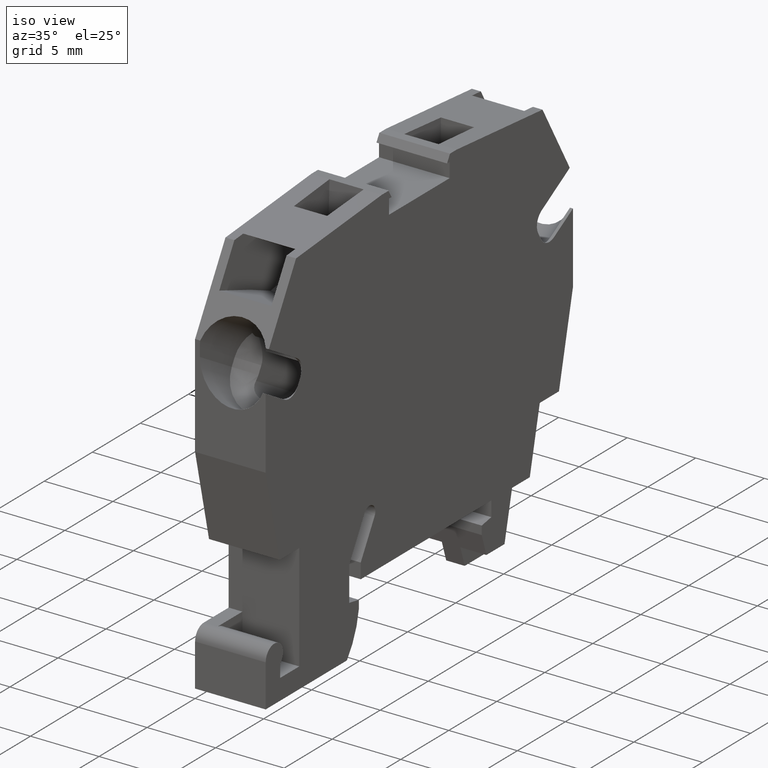
[diagram: clean part render]
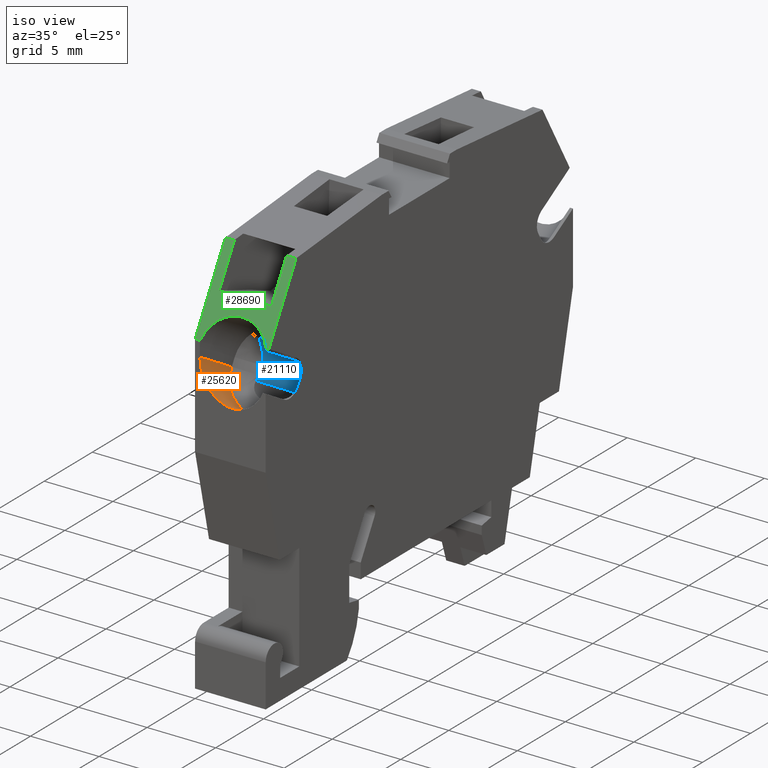
[diagram: same view with three faces highlighted in distinct colors, each labeled with its STEP entity id]
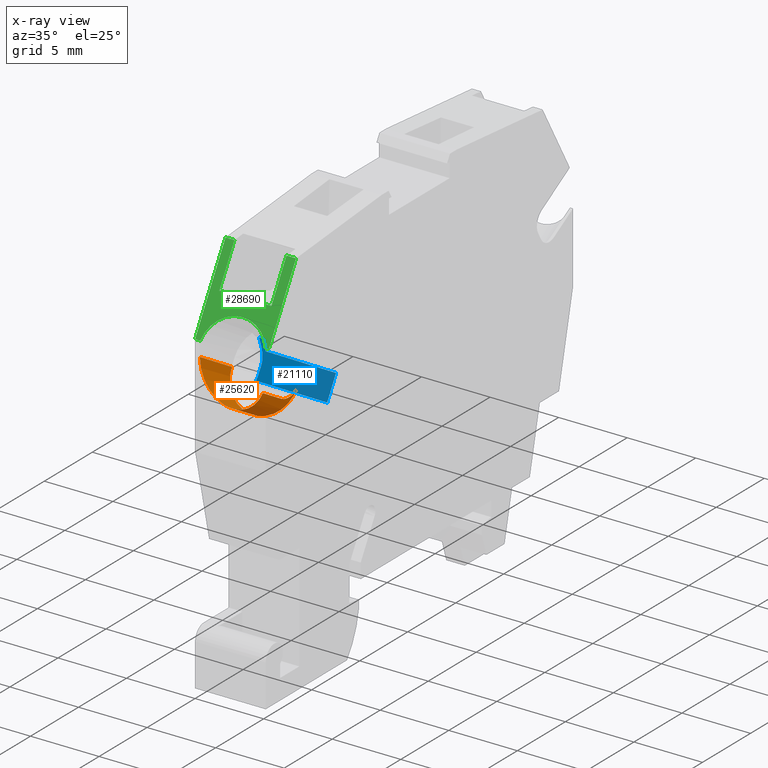
[diagram: x-ray of the same camera — body ghosted, the three highlighted faces saturated]
A machine part, iso view with three faces highlighted in distinct colors.
The next image is the same camera in x-ray (body ghosted, the three faces saturated) — at least one of them is partly hidden behind the body in this view.
Their STEP definitions:

[orange] entity #25620 — the highlighted cylindrical surface (partial cylindrical patch) has radius 2.4 mm, axis along (0, -0.866, 0.5).
#860=CARTESIAN_POINT('',(78.8452959192466,131.52029732996,
4.74999999999983));
#870=VERTEX_POINT('',#860);
#13780=CARTESIAN_POINT('',(78.8452959192445,135.356589515384,
9.54999999999883));
#13790=VERTEX_POINT('',#13780);
#13820=CARTESIAN_POINT('',(78.8452959192467,135.356589515383,
7.14999999999883));
#13830=DIRECTION('',(0.500000000000517,0.86602540378414,
3.82523673593448E-18));
#13840=DIRECTION('',(0.86602540378414,-0.500000000000517,
5.37711908566569E-13));
#13850=AXIS2_PLACEMENT_3D('',#13820,#13830,#13840);
#13860=ELLIPSE('',#13850,2.77128129211124,2.4);
#13870=CARTESIAN_POINT('',(79.8452959192421,134.779239246195,
4.96825757706972));
#13880=VERTEX_POINT('',#13870);
#13890=EDGE_CURVE('',#13790,#13880,#13860,.T.);
#24250=CARTESIAN_POINT('',(78.8452959192469,131.520297329961,
7.14999999999986));
#24260=DIRECTION('',(-4.82947015711943E-14,1.,-2.68852641531397E-13));
#24270=DIRECTION('',(-1.,-4.85722573273506E-14,1.44070206015495E-13));
#24280=AXIS2_PLACEMENT_3D('',#24250,#24260,#24270);
#24290=CIRCLE('',#24280,2.4);
#24300=CARTESIAN_POINT('',(78.8452959192465,131.520297329961,
9.54999999999986));
#24310=VERTEX_POINT('',#24300);
#24320=EDGE_CURVE('',#24310,#870,#24290,.T.);
#24550=CARTESIAN_POINT('',(78.8452959192468,134.600297329961,
7.14999999999903));
#24560=DIRECTION('',(-4.82947015711943E-14,1.,-2.68852641531397E-13));
#24570=DIRECTION('',(-1.,-4.85167461761193E-14,1.44070206015495E-13));
#24580=AXIS2_PLACEMENT_3D('',#24550,#24560,#24570);
#24590=CYLINDRICAL_SURFACE('',#24580,2.4);
#24600=ORIENTED_EDGE('',*,*,#13890,.T.);
#24610=CARTESIAN_POINT('',(78.84529591925,134.600297329959,
9.54999999999903));
#24620=DIRECTION('',(4.82947015711943E-14,-1.,2.68852641531397E-13));
#24630=VECTOR('',#24620,1.);
#24640=LINE('',#24610,#24630);
#24650=EDGE_CURVE('',#13790,#24310,#24640,.T.);
#24660=ORIENTED_EDGE('',*,*,#24650,.F.);
#24670=ORIENTED_EDGE('',*,*,#24320,.F.);
#24680=CARTESIAN_POINT('',(78.8452959192458,132.52029732996,
4.7499999999996));
#24690=DIRECTION('',(-1.44070206015482E-13,-2.68852641531403E-13,-1.));
#24700=DIRECTION('',(-0.499999999999457,-0.866025403784753,
3.04868320448494E-13));
#24710=AXIS2_PLACEMENT_3D('',#24680,#24690,#24700);
#24720=CYLINDRICAL_SURFACE('',#24710,1.);
#24730=CARTESIAN_POINT('',(78.8452959192469,131.520297329961,
7.14999999999986));
#24740=DIRECTION('',(4.84612350248881E-14,-1.,2.68852641531396E-13));
#24750=DIRECTION('',(-1.,-4.86277684785819E-14,1.44070206015495E-13));
#24760=AXIS2_PLACEMENT_3D('',#24730,#24740,#24750);
#24770=CYLINDRICAL_SURFACE('',#24760,2.4);
#24780=CARTESIAN_POINT('',(79.8452959192459,132.52029732996,
4.96825757707199));
#24790=CARTESIAN_POINT('',(79.8452959192459,132.503783723917,
4.968257577072));
#24800=CARTESIAN_POINT('',(79.8448891180082,132.487343474391,
4.96807098128669));
#24810=CARTESIAN_POINT('',(79.8440729239077,132.470855495865,
4.96769743276454));
#24820=CARTESIAN_POINT('',(79.8432570301513,132.454373584604,
4.96732402170123));
#24830=CARTESIAN_POINT('',(79.8420313594368,132.437881269464,
4.96676348116938));
#24840=CARTESIAN_POINT('',(79.8403946663274,132.421411114759,
4.96601774650974));
#24850=CARTESIAN_POINT('',(79.8387579808513,132.404941036869,
4.96527201532806));
#24860=CARTESIAN_POINT('',(79.8367102832858,132.38849350864,
4.96434110044273));
#24870=CARTESIAN_POINT('',(79.834254146795,132.372102781603,
4.96323032210377));
#24880=CARTESIAN_POINT('',(79.8317980161732,132.355712093731,
4.962119546419));
#24890=CARTESIAN_POINT('',(79.8289334923616,132.339378595096,
4.96082893984852));
#24900=CARTESIAN_POINT('',(79.8256671440411,132.323136832919,
4.95936715499906));
#24910=CARTESIAN_POINT('',(79.8224007968795,132.306895076505,
4.95790537066822));
#24920=CARTESIAN_POINT('',(79.8187327010532,132.290745425284,
4.95627245926186));
#24930=CARTESIAN_POINT('',(79.8146733011623,132.27472149355,
4.95448013185209));
#24940=CARTESIAN_POINT('',(79.810613895113,132.258697537505,
4.95268780172322));
#24950=CARTESIAN_POINT('',(79.806163284352,132.24279963711,
4.95073612061195));
#24960=CARTESIAN_POINT('',(79.8013354191782,132.227059415343,
4.94863940378398));
#24970=CARTESIAN_POINT('',(79.7965075380119,132.211319141436,
4.94654268001055));
#24980=CARTESIAN_POINT('',(79.7913025184594,132.195736841118,
4.94430099400105));
#24990=CARTESIAN_POINT('',(79.785737232101,132.180341248863,
4.94193067656866));
#25000=CARTESIAN_POINT('',(79.7801716089301,132.164944724862,
4.93956021568406));
#25010=CARTESIAN_POINT('',(79.7742473062006,132.149738794812,
4.93706181153044));
#25020=CARTESIAN_POINT('',(79.7679790676435,132.134738245431,
4.9344513529001));
#25030=CARTESIAN_POINT('',(79.7554342732725,132.104717242605,
4.92922697185058));
#25040=CARTESIAN_POINT('',(79.7413992999056,132.075255528115,
4.92350621675066));
#25050=CARTESIAN_POINT('',(79.725949510481,132.046536575734,
4.91741198331445));
#25060=CARTESIAN_POINT('',(79.710499954049,132.017818056453,
4.91131784178313));
#25070=CARTESIAN_POINT('',(79.6936379011861,131.989847216989,
4.90485176016513));
#25080=CARTESIAN_POINT('',(79.6754747789337,131.962800190121,
4.89815563128104));
#25090=CARTESIAN_POINT('',(79.657311664896,131.935753175486,
4.89145950542546));
#25100=CARTESIAN_POINT('',(79.6378503210951,131.909634162963,
4.88453499320454));
#25110=CARTESIAN_POINT('',(79.6172318287234,131.884596966849,
4.87753108895589));
#25120=CARTESIAN_POINT('',(79.5966130475353,131.859559420023,
4.87052708659909));
#25130=CARTESIAN_POINT('',(79.5748403922512,131.835607221363,
4.86344529800029));
#25140=CARTESIAN_POINT('',(79.5520736786058,131.812861679972,
4.85642959583172));
#25150=CARTESIAN_POINT('',(79.5293034700908,131.790112646961,
4.84941281669772));
#25160=CARTESIAN_POINT('',(79.5053165341124,131.768348640709,
4.84239317853632));
#25170=CARTESIAN_POINT('',(79.4802344902774,131.747734704005,
4.83551236533489));
#25180=CARTESIAN_POINT('',(79.4551527770875,131.727121039045,
4.82863164284006));
#25190=CARTESIAN_POINT('',(79.4289796332799,131.707660927192,
4.82189134728667));
#25200=CARTESIAN_POINT('',(79.4018722177449,131.689500830219,
4.81542877085628));
#25210=CARTESIAN_POINT('',(79.3747647721068,131.671340713079,
4.8089661872491));
#25220=CARTESIAN_POINT('',(79.3467277423622,131.654483826216,
4.80278289993911));
#25230=CARTESIAN_POINT('',(79.3179430800727,131.639045571734,
4.79700092193775));
#25240=CARTESIAN_POINT('',(79.2891579374239,131.623607059617,
4.79121884744657));
#25250=CARTESIAN_POINT('',(79.2596306863956,131.609589778195,
4.78583940690121));
#25260=CARTESIAN_POINT('',(79.2295507050833,131.597070240041,
4.78096047741651));
#25270=CARTESIAN_POINT('',(79.2145138371867,131.590811770682,
4.77852151918126));
#25280=CARTESIAN_POINT('',(79.1992850225551,131.584904690061,
4.77619850967548));
#25290=CARTESIAN_POINT('',(79.1838906094837,131.579365007344,
4.77400470628745));
#25300=CARTESIAN_POINT('',(79.1684962923804,131.573825359162,
4.77181091657551));
#25310=CARTESIAN_POINT('',(79.1529369199585,131.568653330917,
4.76974643182242));
#25320=CARTESIAN_POINT('',(79.1372418790132,131.563862514316,
4.76782293761005));
#25330=CARTESIAN_POINT('',(79.1215468425582,131.559071699086,
4.76589944394799));
#25340=CARTESIAN_POINT('',(79.1057164222116,131.554662187053,
4.76411698754787));
#25350=CARTESIAN_POINT('',(79.0897814044683,131.55064437786,
4.76248521522552));
#25360=CARTESIAN_POINT('',(79.0738463641326,131.546626562971,
4.76085344058968));
#25370=CARTESIAN_POINT('',(79.0578070286549,131.543000520502,
4.7593723860745));
#25380=CARTESIAN_POINT('',(79.041694615462,131.539773208827,
4.75804942523352));
#25390=CARTESIAN_POINT('',(79.009497647316,131.533324165473,
4.7554057909408));
#25400=CARTESIAN_POINT('',(78.9768967390271,131.528445655595,
4.7533855225178));
#25410=CARTESIAN_POINT('',(78.9440653399638,131.525186983551,
4.75203323594094));
#25420=CARTESIAN_POINT('',(78.9276539132314,131.523558071624,
4.75135726864406));
#25430=CARTESIAN_POINT('',(78.9111942703779,131.52233469093,
4.75084830001907));
#25440=CARTESIAN_POINT('',(78.8947213511331,131.521519513485,
4.75050898591316));
#25450=CARTESIAN_POINT('',(78.8782474716679,131.520704288523,
4.75016965202834));
#25460=CARTESIAN_POINT('',(78.8617647198036,131.52029732996,
4.74999999999987));
#25470=CARTESIAN_POINT('',(78.8452959192466,131.52029732996,
4.74999999999987));
#25480=B_SPLINE_CURVE_WITH_KNOTS('',3,(#24780,#24790,#24800,#24810,
#24820,#24830,#24840,#24850,#24860,#24870,#24880,#24890,#24900,#24910,
#24920,#24930,#24940,#24950,#24960,#24970,#24980,#24990,#25000,#25010,
#25020,#25030,#25040,#25050,#25060,#25070,#25080,#25090,#25100,#25110,
#25120,#25130,#25140,#25150,#25160,#25170,#25180,#25190,#25200,#25210,
#25220,#25230,#25240,#25250,#25260,#25270,#25280,#25290,#25300,#25310,
#25320,#25330,#25340,#25350,#25360,#25370,#25380,#25390,#25400,#25410,
#25420,#25430,#25440,#25450,#25460,#25470),.UNSPECIFIED.,.F.,.F.,(4,3,3,
3,3,3,3,3,3,3,3,3,3,3,3,3,3,3,3,3,3,3,3,4),(0.,0.0494662261203966,
0.0990817925598835,0.148855224811765,0.198724314437629,0.248618022547,
0.29846036609485,0.348174031160832,0.397686184560099,0.496905628076421,
0.596596057701831,0.696300543126176,0.795518350675622,0.894752055819199,
0.994466197296149,1.0941528869131,1.19335301586382,1.24282250010806,
1.29237236203002,1.34193305594301,1.3914382190908,1.49038070031031,
1.5398901693319,1.58933923803272),.UNSPECIFIED.);
#25490=SURFACE_CURVE('',#25480,(#24720,#24770),.CURVE_3D.);
#25500=CARTESIAN_POINT('',(79.8452959192466,132.52029732996,
4.96825757707231));
#25510=VERTEX_POINT('',#25500);
#25520=EDGE_CURVE('',#25510,#870,#25490,.T.);
#25530=ORIENTED_EDGE('',*,*,#25520,.T.);
#25540=CARTESIAN_POINT('',(79.8452959192464,134.60029732996,
4.96825757707175));
#25550=DIRECTION('',(-4.82947015711943E-14,1.,-2.68852641531396E-13));
#25560=VECTOR('',#25550,1.);
#25570=LINE('',#25540,#25560);
#25580=EDGE_CURVE('',#25510,#13880,#25570,.T.);
#25590=ORIENTED_EDGE('',*,*,#25580,.F.);
#25600=EDGE_LOOP('',(#25590,#25530,#24670,#24660,#24600));
#25610=FACE_OUTER_BOUND('',#25600,.T.);
#25620=ADVANCED_FACE('',(#25610),#24590,.F.);

[blue] entity #21110 — the highlighted planar face has unit normal (1, 0, -0).
#15320=CARTESIAN_POINT('',(78.2452959192469,131.520297329961,
7.14999999999995));
#15330=DIRECTION('',(-4.10232039761829E-14,1.,-2.68787451052282E-13));
#15340=DIRECTION('',(-1.,-4.85167461761193E-14,1.44070206015495E-13));
#15350=AXIS2_PLACEMENT_3D('',#15320,#15330,#15340);
#15360=CONICAL_SURFACE('',#15350,2.4,0.523598775598301);
#16150=CARTESIAN_POINT('',(78.8452959192469,131.520297329961,
7.14999999999986));
#16160=DIRECTION('',(-5.46976053015772E-14,1.,-2.68787451052282E-13));
#16170=DIRECTION('',(-1.,-4.85167461761193E-14,1.44070206015495E-13));
#16180=AXIS2_PLACEMENT_3D('',#16150,#16160,#16170);
#16190=CONICAL_SURFACE('',#16180,2.4,0.523598775598301);
#17830=CARTESIAN_POINT('',(76.6896159324951,130.250318974947,
8.60000000000043));
#17840=VERTEX_POINT('',#17830);
#17870=CARTESIAN_POINT('',(76.6896159324958,114.965974517326,
8.60000000000454));
#17880=DIRECTION('',(4.85167461761193E-14,-1.,2.68852641531397E-13));
#17890=VECTOR('',#17880,1.);
#17900=LINE('',#17870,#17890);
#17910=CARTESIAN_POINT('',(76.6896159324618,131.046841241217,
8.60000000000022));
#17920=VERTEX_POINT('',#17910);
#17930=EDGE_CURVE('',#17920,#17840,#17900,.T.);
#18590=CARTESIAN_POINT('',(79.2202959192478,121.400297329966,
8.60000000000245));
#18600=VERTEX_POINT('',#18590);
#18630=CARTESIAN_POINT('',(-9.32818109333238,121.400297329924,
8.60000000001521));
#18640=DIRECTION('',(-1.,-4.71012118197223E-13,1.44070206015609E-13));
#18650=VECTOR('',#18640,1.);
#18660=LINE('',#18630,#18650);
#18670=CARTESIAN_POINT('',(77.3702959192515,121.400297329965,
8.60000000000272));
#18680=VERTEX_POINT('',#18670);
#18690=EDGE_CURVE('',#18600,#18680,#18660,.T.);
#18980=CARTESIAN_POINT('',(77.3702959192509,129.857328201361,
8.60000000000044));
#18990=VERTEX_POINT('',#18980);
#19020=CARTESIAN_POINT('',(16.0084399474484,165.28461226468,
8.59999999999976));
#19030=DIRECTION('',(-0.866025403784295,0.500000000000249,
-9.65786242792453E-15));
#19040=VECTOR('',#19030,1.);
#19050=LINE('',#19020,#19040);
#19060=EDGE_CURVE('',#18990,#17840,#19050,.T.);
#19250=CARTESIAN_POINT('',(77.3702959192611,-22.267115902579,
8.60000000004134));
#19260=DIRECTION('',(-6.66688926287407E-14,1.,-2.68852641531394E-13));
#19270=VECTOR('',#19260,1.);
#19280=LINE('',#19250,#19270);
#19290=EDGE_CURVE('',#18680,#18990,#19280,.T.);
#19460=CARTESIAN_POINT('',(78.2452959192472,129.874849062771,
8.60000000000031));
#19470=VERTEX_POINT('',#19460);
#19790=CARTESIAN_POINT('',(79.7579327541299,130.151648924009,
8.60000000000002));
#19800=DIRECTION('',(-1.44070206015482E-13,-2.68852641531403E-13,-1.));
#19810=DIRECTION('',(-0.866025403784463,0.499999999999958,
-9.65786242782196E-15));
#19820=AXIS2_PLACEMENT_3D('',#19790,#19800,#19810);
#19830=PLANE('',#19820);
#19840=CARTESIAN_POINT('',(78.2452959192472,129.874849062771,
8.60000000000031));
#19850=CARTESIAN_POINT('',(78.2243358334393,129.874849062771,
8.60000000000032));
#19860=CARTESIAN_POINT('',(78.2033284284366,129.875638521934,
8.60000000000029));
#19870=CARTESIAN_POINT('',(78.1823501924591,129.877214386951,
8.60000000000029));
#19880=CARTESIAN_POINT('',(78.1613721467414,129.878790237676,
8.60000000000029));
#19890=CARTESIAN_POINT('',(78.1404263400016,129.881152270563,8.6));
#19900=CARTESIAN_POINT('',(78.1195921666102,129.884268943748,
8.60000000000001));
#19910=CARTESIAN_POINT('',(78.0987579718907,129.887385620123,
8.60000000000001));
#19920=CARTESIAN_POINT('',(78.0780380408504,129.891256271999,
8.59999999999975));
#19930=CARTESIAN_POINT('',(78.0575058534869,129.895823876243,
8.59999999999975));
#19940=CARTESIAN_POINT('',(78.0369734675695,129.900391524658,
8.59999999999975));
#19950=CARTESIAN_POINT('',(78.0166307408268,129.905655253531,
8.60000000000028));
#19960=CARTESIAN_POINT('',(77.9965391231579,129.91153940355,
8.60000000000028));
#19970=CARTESIAN_POINT('',(77.976438070019,129.917426316897,
8.60000000000028));
#19980=CARTESIAN_POINT('',(77.9566398530119,129.923914330486,
8.59999999999966));
#19990=CARTESIAN_POINT('',(77.9369982687315,129.930989522448,
8.59999999999966));
#20000=CARTESIAN_POINT('',(77.917361260264,129.938063066133,
8.59999999999966));
#20010=CARTESIAN_POINT('',(77.8979152714598,129.945714515599,
8.60000000000034));
#20020=CARTESIAN_POINT('',(77.8786679731109,129.953886567735,
8.60000000000034));
#20030=CARTESIAN_POINT('',(77.8401733591095,129.970230679352,
8.60000000000034));
#20040=CARTESIAN_POINT('',(77.8024738242004,129.988656912885,
8.60000000000034));
#20050=CARTESIAN_POINT('',(77.7656277379886,130.008700455438,
8.60000000000034));
#20060=CARTESIAN_POINT('',(77.7287818373656,130.028743897034,
8.60000000000034));
#20070=CARTESIAN_POINT('',(77.692788143403,130.050404177076,
8.59999999999208));
#20080=CARTESIAN_POINT('',(77.6577095363021,130.073222854673,
8.59999999999208));
#20090=CARTESIAN_POINT('',(77.6401664314644,130.084634666214,
8.59999999999208));
#20100=CARTESIAN_POINT('',(77.6228679255014,130.096325504121,
8.59999999999969));
#20110=CARTESIAN_POINT('',(77.605778075484,130.108270511369,
8.59999999999969));
#20120=CARTESIAN_POINT('',(77.5886822678377,130.120219682722,
8.59999999999969));
#20130=CARTESIAN_POINT('',(77.5717758647723,130.132437162807,
8.60000000000034));
#20140=CARTESIAN_POINT('',(77.5550440638795,130.144893479372,
8.60000000000034));
#20150=CARTESIAN_POINT('',(77.5383122168534,130.157349830282,
8.60000000000034));
#20160=CARTESIAN_POINT('',(77.5217548480718,130.17004515112,
8.60000000000034));
#20170=CARTESIAN_POINT('',(77.5053582626634,130.182953943085,
8.60000000000034));
#20180=CARTESIAN_POINT('',(77.4889616488213,130.195862757436,
8.60000000000033));
#20190=CARTESIAN_POINT('',(77.4727257282941,130.20898515487,
8.60000000000034));
#20200=CARTESIAN_POINT('',(77.4566381555458,130.222298826367,
8.60000000000033));
#20210=CARTESIAN_POINT('',(77.4244631676718,130.248926038915,
8.60000000000033));
#20220=CARTESIAN_POINT('',(77.3928792628184,130.276317220366,
8.60000000000033));
#20230=CARTESIAN_POINT('',(77.3618062804518,130.304321128387,
8.60000000000032));
#20240=CARTESIAN_POINT('',(77.3307332293609,130.332325098345,
8.60000000000032));
#20250=CARTESIAN_POINT('',(77.3001701120458,130.360943665733,
8.60000000000032));
#20260=CARTESIAN_POINT('',(77.270059178825,130.390050151265,
8.60000000000031));
#20270=CARTESIAN_POINT('',(77.2399483085634,130.419156575938,
8.60000000000031));
#20280=CARTESIAN_POINT('',(77.2102892287445,130.44875202697,
8.6000000000003));
#20290=CARTESIAN_POINT('',(77.1810437251081,130.478724200226,
8.6000000000003));
#20300=CARTESIAN_POINT('',(77.1517983100023,130.508696282752,
8.6000000000003));
#20310=CARTESIAN_POINT('',(77.1229663851736,130.539045691513,
8.60000000000029));
#20320=CARTESIAN_POINT('',(77.0945252898561,130.56966906587,
8.60000000000029));
#20330=CARTESIAN_POINT('',(77.0660783865188,130.600298693894,
8.60000000000029));
#20340=CARTESIAN_POINT('',(77.0380569165945,130.631163554328,
8.59999999998741));
#20350=CARTESIAN_POINT('',(77.0103106756723,130.662324566176,
8.59999999998741));
#20360=CARTESIAN_POINT('',(76.9825685857215,130.693480916187,
8.5999999999874));
#20370=CARTESIAN_POINT('',(76.9551276102832,130.724906117103,
8.60000000000027));
#20380=CARTESIAN_POINT('',(76.9279492062412,130.756560781191,
8.60000000000026));
#20390=CARTESIAN_POINT('',(76.9007707650533,130.788215488542,
8.60000000000026));
#20400=CARTESIAN_POINT('',(76.8738548443939,130.820099969131,
8.60000000000025));
#20410=CARTESIAN_POINT('',(76.8471694515183,130.852182187721,
8.60000000000025));
#20420=CARTESIAN_POINT('',(76.8204840424965,130.884264425722,
8.60000000000024));
#20430=CARTESIAN_POINT('',(76.7940291404898,130.916544619081,
8.60000000000024));
#20440=CARTESIAN_POINT('',(76.7677782731172,130.948996005285,
8.60000000000024));
#20450=CARTESIAN_POINT('',(76.7415274025341,130.981447395457,
8.60000000000023));
#20460=CARTESIAN_POINT('',(76.7154805633329,131.014070130863,
8.60000000000022));
#20470=CARTESIAN_POINT('',(76.6896159324744,131.046841241201,
8.60000000000022));
#20480=B_SPLINE_CURVE_WITH_KNOTS('',3,(#19840,#19850,#19860,#19870,
#19880,#19890,#19900,#19910,#19920,#19930,#19940,#19950,#19960,#19970,
#19980,#19990,#20000,#20010,#20020,#20030,#20040,#20050,#20060,#20070,
#20080,#20090,#20100,#20110,#20120,#20130,#20140,#20150,#20160,#20170,
#20180,#20190,#20200,#20210,#20220,#20230,#20240,#20250,#20260,#20270,
#20280,#20290,#20300,#20310,#20320,#20330,#20340,#20350,#20360,#20370,
#20380,#20390,#20400,#20410,#20420,#20430,#20440,#20450,#20460,#20470),
.UNSPECIFIED.,.F.,.F.,(4,3,3,3,3,3,3,3,3,3,3,3,3,3,3,3,3,3,3,3,3,4),(0.,
0.0630049094060745,0.12617241128217,0.189337864524399,0.252308963806416,
0.314955840676469,0.377627333495997,0.503305333187885,0.629073385291132,
0.691727814558913,0.754301562919803,0.816891622087094,0.879516402298483,
1.00490807591389,1.13048116406656,1.25613132162383,1.38165903462097,
1.50686972768114,1.63202683054386,1.75720327204146,1.88240757800527,
2.00764028213981),.UNSPECIFIED.);
#20490=SURFACE_CURVE('',#20480,(#15360,#19830),.CURVE_3D.);
#20500=EDGE_CURVE('',#19470,#17920,#20490,.T.);
#20620=CARTESIAN_POINT('',(79.2202959192479,118.183752470913,
8.60000000000331));
#20630=DIRECTION('',(-4.83502127224256E-14,1.,-2.68852641531396E-13));
#20640=VECTOR('',#20630,1.);
#20650=LINE('',#20620,#20640);
#20660=CARTESIAN_POINT('',(79.2202959192473,129.957479283316,
8.60000000000015));
#20670=VERTEX_POINT('',#20660);
#20680=EDGE_CURVE('',#18600,#20670,#20650,.T.);
#20690=ORIENTED_EDGE('',*,*,#20680,.F.);
#20700=CARTESIAN_POINT('',(79.2202959192474,129.957479283316,
8.60000000000015));
#20710=CARTESIAN_POINT('',(79.1906755681788,129.944633654788,
8.60000000000016));
#20720=CARTESIAN_POINT('',(79.1605257391667,129.932987997581,
8.60000000000016));
#20730=CARTESIAN_POINT('',(79.1299498704725,129.92278618646,
8.60000000000017));
#20740=CARTESIAN_POINT('',(79.1146621978423,129.917685368223,
8.60000000000017));
#20750=CARTESIAN_POINT('',(79.0992687969026,129.912945213924,
8.59999999999492));
#20760=CARTESIAN_POINT('',(79.083784002444,129.908592415422,
8.59999999999493));
#20770=CARTESIAN_POINT('',(79.0682991689219,129.90423960594,
8.59999999999493));
#20780=CARTESIAN_POINT('',(79.0527231867953,129.900274250119,
8.60000000000003));
#20790=CARTESIAN_POINT('',(79.0370703602729,129.896719487786,
8.60000000000003));
#20800=CARTESIAN_POINT('',(79.0214118363255,129.893163431565,
8.60000000000003));
#20810=CARTESIAN_POINT('',(79.0057017855488,129.890022686608,
8.60000000000019));
#20820=CARTESIAN_POINT('',(78.9898802115718,129.887303650039,
8.6000000000002));
#20830=CARTESIAN_POINT('',(78.9740555068569,129.884584075434,
8.6000000000002));
#20840=CARTESIAN_POINT('',(78.9581174396378,129.882287763158,
8.6000000000002));
#20850=CARTESIAN_POINT('',(78.9420969510803,129.880439419446,
8.60000000000021));
#20860=CARTESIAN_POINT('',(78.926076622211,129.878591094158,
8.60000000000021));
#20870=CARTESIAN_POINT('',(78.9099746200064,129.877190961641,
8.60000000000022));
#20880=CARTESIAN_POINT('',(78.8938278035948,129.876255419054,
8.60000000000022));
#20890=CARTESIAN_POINT('',(78.877681072899,129.875319881434,
8.60000000000022));
#20900=CARTESIAN_POINT('',(78.8614904059925,129.874849062772,
8.60000000000022));
#20910=CARTESIAN_POINT('',(78.8452959193286,129.874849062771,
8.60000000000022));
#20920=B_SPLINE_CURVE_WITH_KNOTS('',3,(#20700,#20710,#20720,#20730,
#20740,#20750,#20760,#20770,#20780,#20790,#20800,#20810,#20820,#20830,
#20840,#20850,#20860,#20870,#20880,#20890,#20900,#20910),.UNSPECIFIED.,
.F.,.F.,(4,3,3,3,3,3,3,4),(0.,0.0968088348403163,0.14511202985291,
0.193316062960432,0.241442071349904,0.289722007187167,0.338178708682954,
0.386737742139639),.UNSPECIFIED.);
#20930=SURFACE_CURVE('',#20920,(#16190,#19830),.CURVE_3D.);
#20940=CARTESIAN_POINT('',(78.845295919478,129.874849062771,
8.60000000000022));
#20950=VERTEX_POINT('',#20940);
#20960=EDGE_CURVE('',#20670,#20950,#20930,.T.);
#20970=ORIENTED_EDGE('',*,*,#20960,.F.);
#20980=CARTESIAN_POINT('',(69.8396644259696,129.87484906277,
8.60000000000152));
#20990=DIRECTION('',(-1.,-4.85167461761193E-14,1.44070206015495E-13));
#21000=VECTOR('',#20990,1.);
#21010=LINE('',#20980,#21000);
#21020=EDGE_CURVE('',#20950,#19470,#21010,.T.);
#21030=ORIENTED_EDGE('',*,*,#21020,.F.);
#21040=ORIENTED_EDGE('',*,*,#20500,.F.);
#21050=ORIENTED_EDGE('',*,*,#17930,.F.);
#21060=ORIENTED_EDGE('',*,*,#19060,.T.);
#21070=ORIENTED_EDGE('',*,*,#19290,.T.);
#21080=ORIENTED_EDGE('',*,*,#18690,.T.);
#21090=EDGE_LOOP('',(#21080,#21070,#21060,#21050,#21040,#21030,#20970,
#20690));
#21100=FACE_OUTER_BOUND('',#21090,.T.);
#21110=ADVANCED_FACE('',(#21100),#19830,.T.);

[green] entity #28690 — the highlighted planar face has unit normal (-0, 0.866, -0.5).
#1110=CARTESIAN_POINT('',(77.2452959192463,135.90029732996,
4.74999999999991));
#1120=VERTEX_POINT('',#1110);
#1150=CARTESIAN_POINT('',(79.6226566744922,135.900297329959,
4.74999999999987));
#1160=DIRECTION('',(-1.,-1.68365321684405E-13,1.9300830002557E-14));
#1170=VECTOR('',#1160,1.);
#1180=LINE('',#1150,#1170);
#1190=CARTESIAN_POINT('',(71.5706800120703,135.900297329958,
4.75000000000002));
#1200=VERTEX_POINT('',#1190);
#1210=EDGE_CURVE('',#1120,#1200,#1180,.T.);
#10500=CARTESIAN_POINT('',(71.5706800120703,135.900297329958,9.9));
#10510=VERTEX_POINT('',#10500);
#10540=CARTESIAN_POINT('',(79.6226566744922,135.900297329959,9.9));
#10550=DIRECTION('',(-1.,-1.68365321684405E-13,-2.05268329735081E-48));
#10560=VECTOR('',#10550,1.);
#10570=LINE('',#10540,#10560);
#10580=CARTESIAN_POINT('',(77.9035663599303,135.900297329959,9.9));
#10590=VERTEX_POINT('',#10580);
#10600=EDGE_CURVE('',#10590,#10510,#10570,.T.);
#13680=CARTESIAN_POINT('',(77.9035663599257,135.900297329961,
9.52554644414592));
#13690=VERTEX_POINT('',#13680);
#14000=CARTESIAN_POINT('',(77.9035663599303,135.900297329959,
-0.100000000000001));
#14010=DIRECTION('',(-1.31555400968625E-17,3.1783516978558E-18,1.));
#14020=VECTOR('',#14010,1.);
#14030=LINE('',#14000,#14020);
#14040=EDGE_CURVE('',#13690,#10590,#14030,.T.);
#14460=CARTESIAN_POINT('',(71.5706800120703,135.900297329958,
-0.100000000000001));
#14470=DIRECTION('',(2.50910263134173E-18,3.17835169785844E-18,1.));
#14480=VECTOR('',#14470,1.);
#14490=LINE('',#14460,#14480);
#14500=CARTESIAN_POINT('',(71.5706800120703,135.900297329958,
5.45000000000001));
#14510=VERTEX_POINT('',#14500);
#14520=EDGE_CURVE('',#1200,#14510,#14490,.T.);
#14740=CARTESIAN_POINT('',(71.5706800120703,135.900297329958,
9.25000000000001));
#14750=VERTEX_POINT('',#14740);
#14780=CARTESIAN_POINT('',(71.5706800120703,135.900297329958,
-0.100000000000001));
#14790=DIRECTION('',(-2.50910263134173E-18,-3.17835169785844E-18,-1.));
#14800=VECTOR('',#14790,1.);
#14810=LINE('',#14780,#14800);
#14820=EDGE_CURVE('',#10510,#14750,#14810,.T.);
#26600=CARTESIAN_POINT('',(78.2452959192467,135.900297329959,
7.14999999999877));
#26610=DIRECTION('',(-4.82947015711943E-14,1.,-2.68852641531396E-13));
#26620=DIRECTION('',(-1.,-4.82947015711556E-14,1.44070206015495E-13));
#26630=AXIS2_PLACEMENT_3D('',#26600,#26610,#26620);
#26640=CIRCLE('',#26630,2.4);
#26650=CARTESIAN_POINT('',(77.2452959192464,135.900297329958,
4.96825757707178));
#26660=VERTEX_POINT('',#26650);
#26670=EDGE_CURVE('',#26660,#13690,#26640,.T.);
#28140=CARTESIAN_POINT('',(77.2452959192456,135.900297329959,
-0.100000000000001));
#28150=DIRECTION('',(-1.44070206015495E-13,-3.17835172212486E-18,-1.));
#28160=VECTOR('',#28150,1.);
#28170=LINE('',#28140,#28160);
#28180=EDGE_CURVE('',#26660,#1120,#28170,.T.);
#28330=CARTESIAN_POINT('',(74.944065659006,135.900297329958,
2.30298489355548));
#28340=DIRECTION('',(1.68365321684405E-13,-1.,3.17835169785802E-18));
#28350=DIRECTION('',(-1.,-1.68365321684405E-13,9.56309183983368E-19));
#28360=AXIS2_PLACEMENT_3D('',#28330,#28340,#28350);
#28370=PLANE('',#28360);
#28380=CARTESIAN_POINT('',(79.6226566744921,135.900297329959,
9.25000000000001));
#28390=DIRECTION('',(-1.,-1.68365321684405E-13,-2.05268329735081E-48));
#28400=VECTOR('',#28390,1.);
#28410=LINE('',#28380,#28400);
#28420=CARTESIAN_POINT('',(74.7162562402307,135.900297329958,
9.25000000000001));
#28430=VERTEX_POINT('',#28420);
#28440=EDGE_CURVE('',#28430,#14750,#28410,.T.);
#28450=ORIENTED_EDGE('',*,*,#28440,.T.);
#28460=CARTESIAN_POINT('',(74.7162562402333,135.900297329959,
-0.100000000000001));
#28470=DIRECTION('',(-1.67982975616831E-18,2.68914593386317E-13,1.));
#28480=VECTOR('',#28470,1.);
#28490=LINE('',#28460,#28480);
#28500=CARTESIAN_POINT('',(74.7162562402304,135.900297329958,
5.45000000000001));
#28510=VERTEX_POINT('',#28500);
#28520=EDGE_CURVE('',#28510,#28430,#28490,.T.);
#28530=ORIENTED_EDGE('',*,*,#28520,.T.);
#28540=CARTESIAN_POINT('',(79.6226566744921,135.900297329959,
5.45000000000001));
#28550=DIRECTION('',(1.,1.68365321684405E-13,2.05268329735081E-48));
#28560=VECTOR('',#28550,1.);
#28570=LINE('',#28540,#28560);
#28580=EDGE_CURVE('',#14510,#28510,#28570,.T.);
#28590=ORIENTED_EDGE('',*,*,#28580,.T.);
#28600=ORIENTED_EDGE('',*,*,#14520,.T.);
#28610=ORIENTED_EDGE('',*,*,#1210,.T.);
#28620=ORIENTED_EDGE('',*,*,#28180,.T.);
#28630=ORIENTED_EDGE('',*,*,#26670,.F.);
#28640=ORIENTED_EDGE('',*,*,#14040,.F.);
#28650=ORIENTED_EDGE('',*,*,#10600,.F.);
#28660=ORIENTED_EDGE('',*,*,#14820,.F.);
#28670=EDGE_LOOP('',(#28660,#28650,#28640,#28630,#28620,#28610,#28600,
#28590,#28530,#28450));
#28680=FACE_OUTER_BOUND('',#28670,.T.);
#28690=ADVANCED_FACE('',(#28680),#28370,.F.);